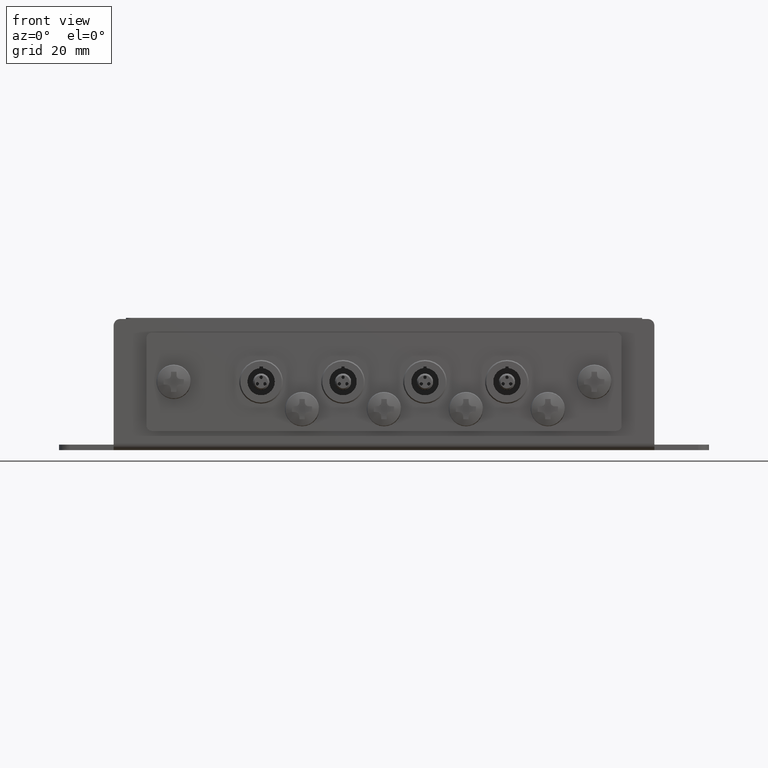
[diagram: clean part render]
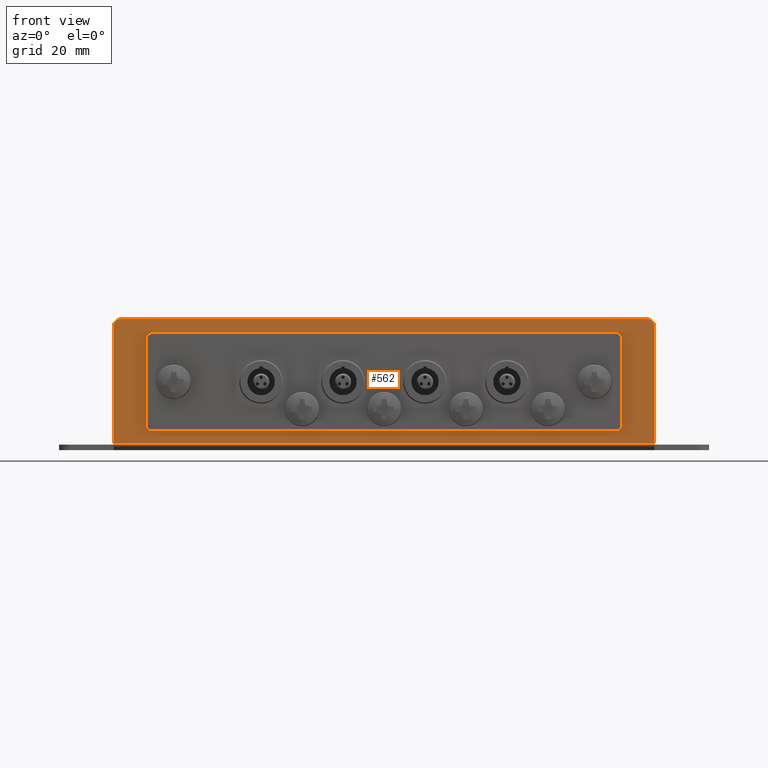
[diagram: same view with one face highlighted and labeled with its STEP entity id]
A machine part, front view. The second image highlights one B-rep face of the part: STEP entity #562.
In plain terms, the highlighted planar face has unit normal (0, -1, 0).
Its self-contained STEP definition (entity closure, byte-faithful):
#562 = ADVANCED_FACE( '', ( #1599, #1600 ), #1601, .T. );
#1599 = FACE_OUTER_BOUND( '', #3226, .T. );
#1600 = FACE_BOUND( '', #3227, .T. );
#1601 = PLANE( '', #3228 );
#3226 = EDGE_LOOP( '', ( #4977, #4978, #4979, #4980, #4981, #4982 ) );
#3227 = EDGE_LOOP( '', ( #4983, #4984, #4985, #4986, #4987, #4988, #4989, #4990 ) );
#3228 = AXIS2_PLACEMENT_3D( '', #4991, #4992, #4993 );
#4977 = ORIENTED_EDGE( '', *, *, #9342, .T. );
#4978 = ORIENTED_EDGE( '', *, *, #9343, .T. );
#4979 = ORIENTED_EDGE( '', *, *, #9344, .F. );
#4980 = ORIENTED_EDGE( '', *, *, #9345, .T. );
#4981 = ORIENTED_EDGE( '', *, *, #9346, .F. );
#4982 = ORIENTED_EDGE( '', *, *, #9347, .T. );
#4983 = ORIENTED_EDGE( '', *, *, #9348, .T. );
#4984 = ORIENTED_EDGE( '', *, *, #9349, .T. );
#4985 = ORIENTED_EDGE( '', *, *, #9350, .T. );
#4986 = ORIENTED_EDGE( '', *, *, #9351, .T. );
#4987 = ORIENTED_EDGE( '', *, *, #9352, .T. );
#4988 = ORIENTED_EDGE( '', *, *, #9353, .T. );
#4989 = ORIENTED_EDGE( '', *, *, #9354, .T. );
#4990 = ORIENTED_EDGE( '', *, *, #9355, .T. );
#4991 = CARTESIAN_POINT( '', ( -49.4999070000000, -19.9999855000000, -24.0000000000000 ) );
#4992 = DIRECTION( '', ( 0.000000000000000, -1.00000000000000, 0.000000000000000 ) );
#4993 = DIRECTION( '', ( -1.00000000000000, 0.000000000000000, 0.000000000000000 ) );
#9342 = EDGE_CURVE( '', #11150, #11151, #11152, .T. );
#9343 = EDGE_CURVE( '', #11151, #11153, #11154, .T. );
#9344 = EDGE_CURVE( '', #11155, #11153, #11156, .T. );
#9345 = EDGE_CURVE( '', #11155, #11157, #11158, .T. );
#9346 = EDGE_CURVE( '', #11159, #11157, #11160, .T. );
#9347 = EDGE_CURVE( '', #11159, #11150, #11161, .T. );
#9348 = EDGE_CURVE( '', #11162, #11163, #11164, .T. );
#9349 = EDGE_CURVE( '', #11163, #11165, #11166, .T. );
#9350 = EDGE_CURVE( '', #11165, #11167, #11168, .T. );
#9351 = EDGE_CURVE( '', #11167, #11169, #11170, .T. );
#9352 = EDGE_CURVE( '', #11169, #11171, #11172, .T. );
#9353 = EDGE_CURVE( '', #11171, #11173, #11174, .T. );
#9354 = EDGE_CURVE( '', #11173, #11175, #11176, .T. );
#9355 = EDGE_CURVE( '', #11175, #11162, #11177, .T. );
#11150 = VERTEX_POINT( '', #13806 );
#11151 = VERTEX_POINT( '', #13807 );
#11152 = LINE( '', #13808, #13809 );
#11153 = VERTEX_POINT( '', #13810 );
#11154 = CIRCLE( '', #13811, 1.20000000000000 );
#11155 = VERTEX_POINT( '', #13812 );
#11156 = LINE( '', #13813, #13814 );
#11157 = VERTEX_POINT( '', #13815 );
#11158 = CIRCLE( '', #13816, 1.20000000000000 );
#11159 = VERTEX_POINT( '', #13817 );
#11160 = LINE( '', #13818, #13819 );
#11161 = LINE( '', #13820, #13821 );
#11162 = VERTEX_POINT( '', #13822 );
#11163 = VERTEX_POINT( '', #13823 );
#11164 = LINE( '', #13824, #13825 );
#11165 = VERTEX_POINT( '', #13826 );
#11166 = CIRCLE( '', #13827, 1.00000000000000 );
#11167 = VERTEX_POINT( '', #13828 );
#11168 = LINE( '', #13829, #13830 );
#11169 = VERTEX_POINT( '', #13831 );
#11170 = CIRCLE( '', #13832, 0.999999999999999 );
#11171 = VERTEX_POINT( '', #13833 );
#11172 = LINE( '', #13834, #13835 );
#11173 = VERTEX_POINT( '', #13836 );
#11174 = CIRCLE( '', #13837, 1.00000000000000 );
#11175 = VERTEX_POINT( '', #13838 );
#11176 = LINE( '', #13839, #13840 );
#11177 = CIRCLE( '', #13841, 1.00000000000000 );
#13806 = CARTESIAN_POINT( '', ( 49.4999070000000, -19.9999855000000, -22.8000000000000 ) );
#13807 = CARTESIAN_POINT( '', ( 49.4999070000000, -19.9999855000000, -1.20000000000000 ) );
#13808 = CARTESIAN_POINT( '', ( 49.4999070000000, -19.9999855000000, -24.0000000000000 ) );
#13809 = VECTOR( '', #17672, 1000.00000000000 );
#13810 = CARTESIAN_POINT( '', ( 48.2999070000000, -19.9999855000000, 0.000000000000000 ) );
#13811 = AXIS2_PLACEMENT_3D( '', #17673, #17674, #17675 );
#13812 = CARTESIAN_POINT( '', ( -48.2999070000000, -19.9999855000000, 0.000000000000000 ) );
#13813 = CARTESIAN_POINT( '', ( -49.4999070000000, -19.9999855000000, 0.000000000000000 ) );
#13814 = VECTOR( '', #17676, 1000.00000000000 );
#13815 = CARTESIAN_POINT( '', ( -49.4999070000000, -19.9999855000000, -1.20000000000000 ) );
#13816 = AXIS2_PLACEMENT_3D( '', #17677, #17678, #17679 );
#13817 = CARTESIAN_POINT( '', ( -49.4999070000000, -19.9999855000000, -22.8000000000000 ) );
#13818 = CARTESIAN_POINT( '', ( -49.4999070000000, -19.9999855000000, -24.0000000000000 ) );
#13819 = VECTOR( '', #17680, 1000.00000000000 );
#13820 = CARTESIAN_POINT( '', ( 49.4999070000000, -19.9999855000000, -22.8000000000000 ) );
#13821 = VECTOR( '', #17681, 1000.00000000000 );
#13822 = CARTESIAN_POINT( '', ( -43.5000000000000, -19.9999855000000, -19.5000000000000 ) );
#13823 = CARTESIAN_POINT( '', ( -43.5000000000000, -19.9999855000000, -3.49999999999999 ) );
#13824 = CARTESIAN_POINT( '', ( -43.5000000000000, -19.9999855000000, -19.5000000000000 ) );
#13825 = VECTOR( '', #17682, 1000.00000000000 );
#13826 = CARTESIAN_POINT( '', ( -42.5000000000000, -19.9999855000000, -2.50000000000000 ) );
#13827 = AXIS2_PLACEMENT_3D( '', #17683, #17684, #17685 );
#13828 = CARTESIAN_POINT( '', ( 42.5000000000000, -19.9999855000000, -2.50000000000001 ) );
#13829 = CARTESIAN_POINT( '', ( -42.5000000000000, -19.9999855000000, -2.50000000000000 ) );
#13830 = VECTOR( '', #17686, 1000.00000000000 );
#13831 = CARTESIAN_POINT( '', ( 43.5000000000000, -19.9999855000000, -3.50000000000001 ) );
#13832 = AXIS2_PLACEMENT_3D( '', #17687, #17688, #17689 );
#13833 = CARTESIAN_POINT( '', ( 43.5000000000000, -19.9999855000000, -19.5000000000000 ) );
#13834 = CARTESIAN_POINT( '', ( 43.5000000000000, -19.9999855000000, -3.50000000000001 ) );
#13835 = VECTOR( '', #17690, 1000.00000000000 );
#13836 = CARTESIAN_POINT( '', ( 42.5000000000000, -19.9999855000000, -20.5000000000000 ) );
#13837 = AXIS2_PLACEMENT_3D( '', #17691, #17692, #17693 );
#13838 = CARTESIAN_POINT( '', ( -42.5000000000000, -19.9999855000000, -20.5000000000000 ) );
#13839 = CARTESIAN_POINT( '', ( 42.5000000000000, -19.9999855000000, -20.5000000000000 ) );
#13840 = VECTOR( '', #17694, 1000.00000000000 );
#13841 = AXIS2_PLACEMENT_3D( '', #17695, #17696, #17697 );
#17672 = DIRECTION( '', ( -0.000000000000000, 0.000000000000000, 1.00000000000000 ) );
#17673 = CARTESIAN_POINT( '', ( 48.2999070000000, -19.9999855000000, -1.20000000000000 ) );
#17674 = DIRECTION( '', ( 0.000000000000000, -1.00000000000000, 0.000000000000000 ) );
#17675 = DIRECTION( '', ( 0.000000000000000, 0.000000000000000, -1.00000000000000 ) );
#17676 = DIRECTION( '', ( 1.00000000000000, 0.000000000000000, 0.000000000000000 ) );
#17677 = CARTESIAN_POINT( '', ( -48.2999070000000, -19.9999855000000, -1.20000000000000 ) );
#17678 = DIRECTION( '', ( 0.000000000000000, -1.00000000000000, 0.000000000000000 ) );
#17679 = DIRECTION( '', ( 0.000000000000000, 0.000000000000000, -1.00000000000000 ) );
#17680 = DIRECTION( '', ( -0.000000000000000, 0.000000000000000, 1.00000000000000 ) );
#17681 = DIRECTION( '', ( 1.00000000000000, 0.000000000000000, -0.000000000000000 ) );
#17682 = DIRECTION( '', ( 1.83690953073357E-016, 0.000000000000000, 1.00000000000000 ) );
#17683 = CARTESIAN_POINT( '', ( -42.5000000000000, -19.9999855000000, -3.49999999999999 ) );
#17684 = DIRECTION( '', ( 0.000000000000000, 1.00000000000000, 0.000000000000000 ) );
#17685 = DIRECTION( '', ( -1.00000000000000, 0.000000000000000, -3.06244561544404E-016 ) );
#17686 = DIRECTION( '', ( 1.00000000000000, 0.000000000000000, -1.27436307449798E-016 ) );
#17687 = CARTESIAN_POINT( '', ( 42.5000000000000, -19.9999855000000, -3.50000000000001 ) );
#17688 = DIRECTION( '', ( -0.000000000000000, 1.00000000000000, 0.000000000000000 ) );
#17689 = DIRECTION( '', ( 1.27436307449798E-016, 0.000000000000000, 1.00000000000000 ) );
#17690 = DIRECTION( '', ( -1.83690953073357E-016, 0.000000000000000, -1.00000000000000 ) );
#17691 = CARTESIAN_POINT( '', ( 42.5000000000000, -19.9999855000000, -19.5000000000000 ) );
#17692 = DIRECTION( '', ( 0.000000000000000, 1.00000000000000, 0.000000000000000 ) );
#17693 = DIRECTION( '', ( 1.00000000000000, 0.000000000000000, -1.27436307449798E-016 ) );
#17694 = DIRECTION( '', ( -1.00000000000000, 0.000000000000000, 1.27436307449798E-016 ) );
#17695 = CARTESIAN_POINT( '', ( -42.5000000000000, -19.9999855000000, -19.5000000000000 ) );
#17696 = DIRECTION( '', ( 0.000000000000000, 1.00000000000000, 0.000000000000000 ) );
#17697 = DIRECTION( '', ( -1.27436307449798E-016, 0.000000000000000, -1.00000000000000 ) );